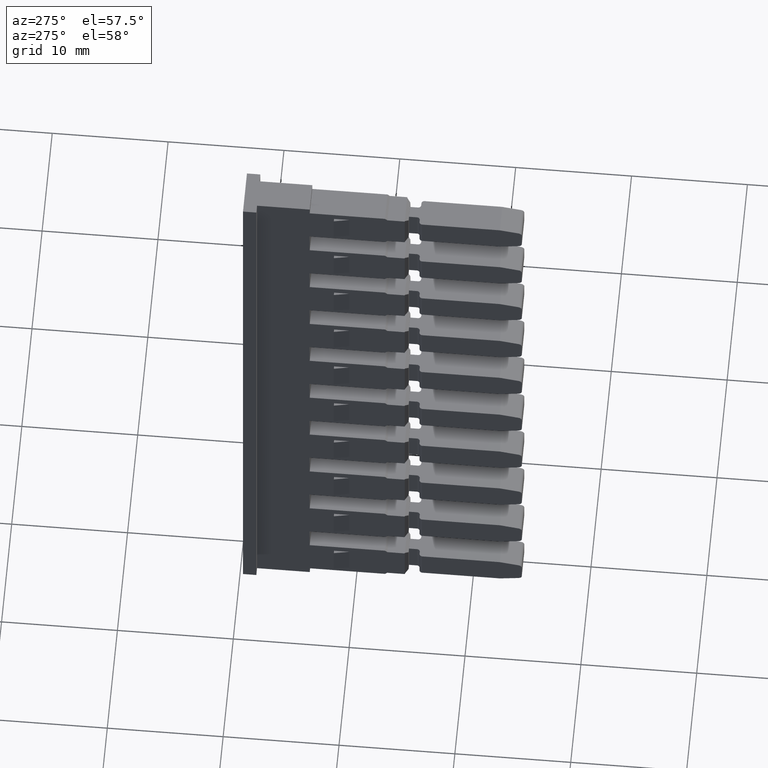
[diagram: clean part render]
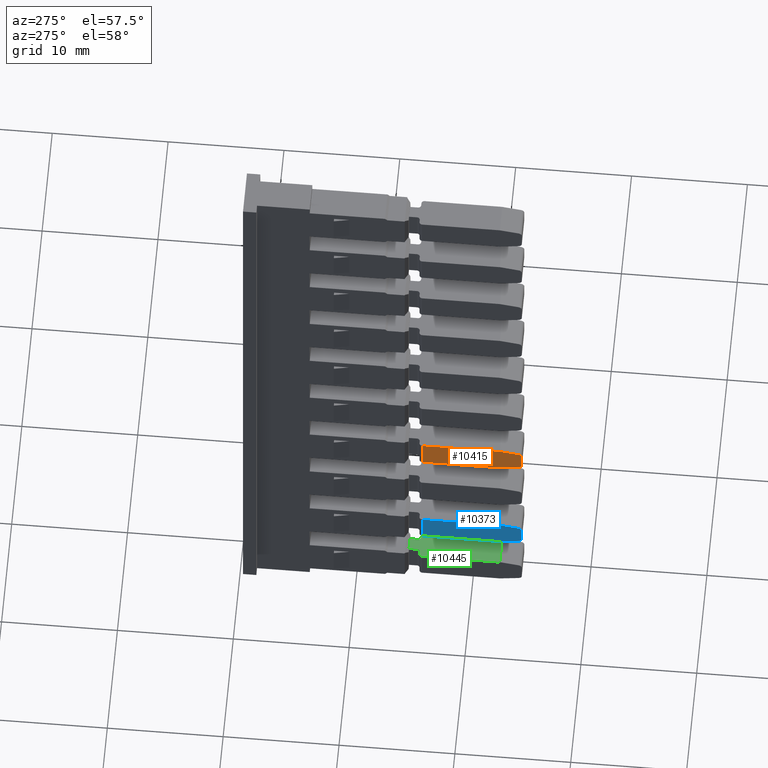
[diagram: same view with three faces highlighted in distinct colors, each labeled with its STEP entity id]
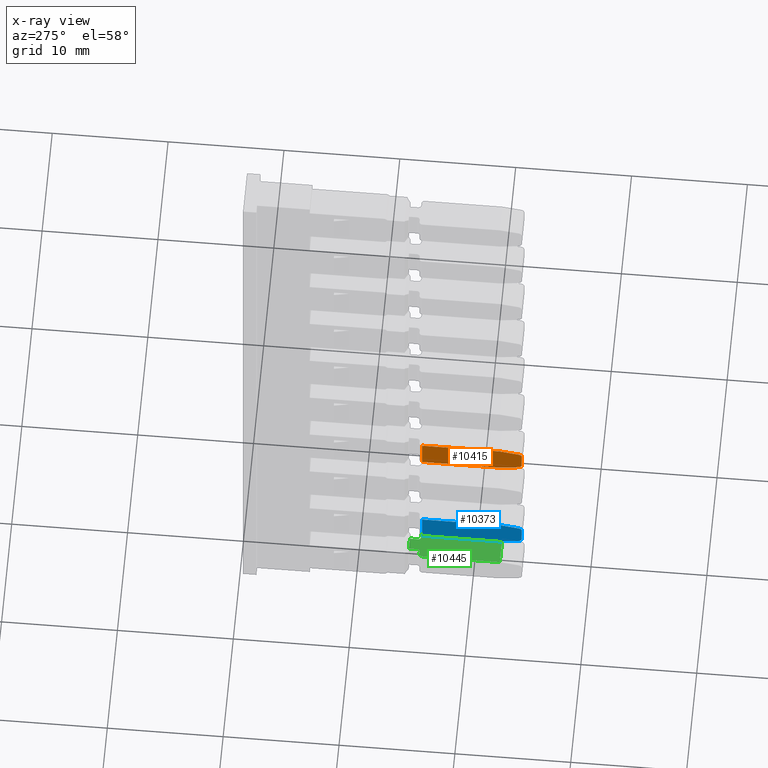
[diagram: x-ray of the same camera — body ghosted, the three highlighted faces saturated]
A machine part, auxiliary view with three faces highlighted in distinct colors.
The next image is the same camera in x-ray (body ghosted, the three faces saturated) — at least one of them is partly hidden behind the body in this view.
Their STEP definitions:

[orange] entity #10415 — the highlighted planar face has unit normal (-1, -0, -0).
#129 = ORIENTED_EDGE ( 'NONE', *, *, #2770, .T. ) ;
#153 = ORIENTED_EDGE ( 'NONE', *, *, #10059, .T. ) ;
#159 = ORIENTED_EDGE ( 'NONE', *, *, #2666, .T. ) ;
#160 = ORIENTED_EDGE ( 'NONE', *, *, #2778, .T. ) ;
#163 = ORIENTED_EDGE ( 'NONE', *, *, #2750, .F. ) ;
#166 = ORIENTED_EDGE ( 'NONE', *, *, #10022, .T. ) ;
#174 = ORIENTED_EDGE ( 'NONE', *, *, #2721, .F. ) ;
#186 = ORIENTED_EDGE ( 'NONE', *, *, #2739, .F. ) ;
#1413 = VECTOR ( 'NONE', #5896, 1000.000000000000000 ) ;
#1430 = CIRCLE ( 'NONE', #1431, 0.3499999999999753300 ) ;
#1431 = AXIS2_PLACEMENT_3D ( 'NONE', #6164, #6196, #6120 ) ;
#1443 = VECTOR ( 'NONE', #5996, 1000.000000000000000 ) ;
#1447 = CIRCLE ( 'NONE', #1457, 0.3499999999999892100 ) ;
#1457 = AXIS2_PLACEMENT_3D ( 'NONE', #6152, #6117, #6204 ) ;
#1490 = VECTOR ( 'NONE', #6283, 1000.000000000000000 ) ;
#1499 = VECTOR ( 'NONE', #6304, 1000.000000000000000 ) ;
#2666 = EDGE_CURVE ( 'NONE', #7634, #7722, #5892, .T. ) ;
#2721 = EDGE_CURVE ( 'NONE', #7715, #7722, #6006, .T. ) ;
#2739 = EDGE_CURVE ( 'NONE', #7641, #7644, #1447, .T. ) ;
#2750 = EDGE_CURVE ( 'NONE', #7674, #7646, #1430, .T. ) ;
#2770 = EDGE_CURVE ( 'NONE', #7641, #7646, #6273, .T. ) ;
#2778 = EDGE_CURVE ( 'NONE', #7715, #7608, #6323, .T. ) ;
#4070 = FACE_OUTER_BOUND ( 'NONE', #8340, .T. ) ;
#4072 = PLANE ( 'NONE',  #13383 ) ;
#4073 = DIRECTION ( 'NONE',  ( -1.000000000000000000, -8.755341356932190700E-015, -5.174141154057529600E-029 ) ) ;
#4080 = DIRECTION ( 'NONE',  ( 8.755341356932190700E-015, -1.000000000000000000, 0.0000000000000000000 ) ) ;
#4088 = CARTESIAN_POINT ( 'NONE',  ( 1456.818237421122100, 988.9878926471552600, -51.22084861506190400 ) ) ;
#5864 = CARTESIAN_POINT ( 'NONE',  ( 1456.818237421122100, 988.9878926471552600, -113.6000000001757500 ) ) ;
#5892 = LINE ( 'NONE', #5864, #1413 ) ;
#5896 = DIRECTION ( 'NONE',  ( -8.755341356932190700E-015, 1.000000000000000000, -0.0000000000000000000 ) ) ;
#5994 = CARTESIAN_POINT ( 'NONE',  ( 1456.818237421122100, 994.2959515111007200, -51.22084861506190400 ) ) ;
#5996 = DIRECTION ( 'NONE',  ( -5.167038929197629600E-029, -3.006023274397918700E-044, 1.000000000000000000 ) ) ;
#6006 = LINE ( 'NONE', #5994, #1443 ) ;
#6117 = DIRECTION ( 'NONE',  ( 1.000000000000000000, 5.817690394031370500E-016, 1.715124499442885300E-015 ) ) ;
#6120 = DIRECTION ( 'NONE',  ( 0.0000000000000000000, 0.0000000000000000000, -1.000000000000000000 ) ) ;
#6152 = CARTESIAN_POINT ( 'NONE',  ( 1456.818237421122100, 986.0446795375041800, -115.5719204243701500 ) ) ;
#6164 = CARTESIAN_POINT ( 'NONE',  ( 1456.818237421122100, 986.0446795375041800, -114.2287961273911200 ) ) ;
#6196 = DIRECTION ( 'NONE',  ( 1.000000000000000000, 5.817690394031370500E-016, 1.715124499442885300E-015 ) ) ;
#6204 = DIRECTION ( 'NONE',  ( 0.0000000000000000000, 0.0000000000000000000, -1.000000000000000000 ) ) ;
#6273 = LINE ( 'NONE', #6309, #1499 ) ;
#6283 = DIRECTION ( 'NONE',  ( 8.755341356932190700E-015, -1.000000000000000000, 0.0000000000000000000 ) ) ;
#6304 = DIRECTION ( 'NONE',  ( 0.0000000000000000000, 0.0000000000000000000, 1.000000000000000000 ) ) ;
#6307 = CARTESIAN_POINT ( 'NONE',  ( 1456.818237421122100, 988.9878926471552600, -116.1999999999900800 ) ) ;
#6309 = CARTESIAN_POINT ( 'NONE',  ( 1456.818237421122100, 985.6946795375042700, -115.5719204243701800 ) ) ;
#6323 = LINE ( 'NONE', #6307, #1490 ) ;
#7608 = VERTEX_POINT ( 'NONE', #9150 ) ;
#7634 = VERTEX_POINT ( 'NONE', #9142 ) ;
#7641 = VERTEX_POINT ( 'NONE', #9132 ) ;
#7644 = VERTEX_POINT ( 'NONE', #9148 ) ;
#7646 = VERTEX_POINT ( 'NONE', #9105 ) ;
#7674 = VERTEX_POINT ( 'NONE', #9177 ) ;
#7715 = VERTEX_POINT ( 'NONE', #9171 ) ;
#7722 = VERTEX_POINT ( 'NONE', #9261 ) ;
#8340 = EDGE_LOOP ( 'NONE', ( #160, #153, #186, #129, #163, #166, #159, #174 ) ) ;
#9105 = CARTESIAN_POINT ( 'NONE',  ( 1456.818237421122100, 985.6946795375042700, -114.2287961273911200 ) ) ;
#9132 = CARTESIAN_POINT ( 'NONE',  ( 1456.818237421122100, 985.6946795375042700, -115.5719204243701500 ) ) ;
#9142 = CARTESIAN_POINT ( 'NONE',  ( 1456.818237421122100, 987.5951899123997500, -113.6000000001434800 ) ) ;
#9148 = CARTESIAN_POINT ( 'NONE',  ( 1456.818237421122100, 985.9839026753207900, -115.9166031379244500 ) ) ;
#9150 = CARTESIAN_POINT ( 'NONE',  ( 1456.818237421122100, 987.5911261468929800, -116.1999999999886200 ) ) ;
#9171 = CARTESIAN_POINT ( 'NONE',  ( 1456.818237421122100, 994.2959515111007200, -116.1999999999891500 ) ) ;
#9177 = CARTESIAN_POINT ( 'NONE',  ( 1456.818237421122100, 985.9839026753209100, -113.8841134138368300 ) ) ;
#9261 = CARTESIAN_POINT ( 'NONE',  ( 1456.818237421122100, 994.2959515111007200, -113.6000000002227200 ) ) ;
#9439 = LINE ( 'NONE', #9442, #12954 ) ;
#9442 = CARTESIAN_POINT ( 'NONE',  ( 1456.818237421122100, 987.5951899123942900, -113.6000000002697000 ) ) ;
#9492 = DIRECTION ( 'NONE',  ( 0.0000000000000000000, 0.9848077530122177900, 0.1736481776668759300 ) ) ;
#9592 = LINE ( 'NONE', #9616, #13019 ) ;
#9606 = DIRECTION ( 'NONE',  ( 0.0000000000000000000, -0.9848077530122103500, 0.1736481776669172600 ) ) ;
#9616 = CARTESIAN_POINT ( 'NONE',  ( 1456.818237421122100, 987.5911261468902500, -116.1999999999900600 ) ) ;
#10022 = EDGE_CURVE ( 'NONE', #7674, #7634, #9439, .T. ) ;
#10059 = EDGE_CURVE ( 'NONE', #7608, #7644, #9592, .T. ) ;
#10415 = ADVANCED_FACE ( 'NONE', ( #4070 ), #4072, .T. ) ;
#12954 = VECTOR ( 'NONE', #9492, 999.9999999999998900 ) ;
#13019 = VECTOR ( 'NONE', #9606, 1000.000000000000100 ) ;
#13383 = AXIS2_PLACEMENT_3D ( 'NONE', #4088, #4073, #4080 ) ;

[blue] entity #10373 — the highlighted planar face has unit normal (-1, -0, -0).
#484 = ORIENTED_EDGE ( 'NONE', *, *, #10176, .T. ) ;
#485 = ORIENTED_EDGE ( 'NONE', *, *, #10113, .T. ) ;
#519 = ORIENTED_EDGE ( 'NONE', *, *, #10131, .F. ) ;
#551 = ORIENTED_EDGE ( 'NONE', *, *, #10127, .F. ) ;
#552 = ORIENTED_EDGE ( 'NONE', *, *, #10110, .F. ) ;
#560 = ORIENTED_EDGE ( 'NONE', *, *, #10167, .T. ) ;
#570 = ORIENTED_EDGE ( 'NONE', *, *, #10092, .T. ) ;
#576 = ORIENTED_EDGE ( 'NONE', *, *, #10185, .T. ) ;
#7726 = VERTEX_POINT ( 'NONE', #9223 ) ;
#7734 = VERTEX_POINT ( 'NONE', #9280 ) ;
#7735 = VERTEX_POINT ( 'NONE', #9258 ) ;
#7757 = VERTEX_POINT ( 'NONE', #9247 ) ;
#7762 = VERTEX_POINT ( 'NONE', #9250 ) ;
#7770 = VERTEX_POINT ( 'NONE', #9269 ) ;
#7782 = VERTEX_POINT ( 'NONE', #9298 ) ;
#7786 = VERTEX_POINT ( 'NONE', #9336 ) ;
#7856 = EDGE_LOOP ( 'NONE', ( #484, #485, #551, #576, #519, #560, #570, #552 ) ) ;
#9223 = CARTESIAN_POINT ( 'NONE',  ( 1456.818237421122100, 985.6946795374904000, -127.3719204243701500 ) ) ;
#9247 = CARTESIAN_POINT ( 'NONE',  ( 1456.818237421122100, 994.2959515110868600, -127.9999999999891300 ) ) ;
#9250 = CARTESIAN_POINT ( 'NONE',  ( 1456.818237421122100, 987.5911261468791100, -127.9999999999886200 ) ) ;
#9258 = CARTESIAN_POINT ( 'NONE',  ( 1456.818237421122100, 985.9839026753069200, -127.7166031379244700 ) ) ;
#9269 = CARTESIAN_POINT ( 'NONE',  ( 1456.818237421122100, 987.5951899123857600, -125.4000000001434500 ) ) ;
#9280 = CARTESIAN_POINT ( 'NONE',  ( 1456.818237421122100, 994.2959515110868600, -125.4000000002227200 ) ) ;
#9298 = CARTESIAN_POINT ( 'NONE',  ( 1456.818237421122100, 985.9839026753070400, -125.6841134138368400 ) ) ;
#9336 = CARTESIAN_POINT ( 'NONE',  ( 1456.818237421122100, 985.6946795374904000, -126.0287961273910900 ) ) ;
#9678 = DIRECTION ( 'NONE',  ( -8.755341356932190700E-015, 1.000000000000000000, -0.0000000000000000000 ) ) ;
#9680 = CARTESIAN_POINT ( 'NONE',  ( 1456.818237421122100, 988.9878926471413900, -125.4000000001757700 ) ) ;
#9692 = LINE ( 'NONE', #9680, #13059 ) ;
#10092 = EDGE_CURVE ( 'NONE', #7770, #7734, #9692, .T. ) ;
#10110 = EDGE_CURVE ( 'NONE', #7757, #7734, #10832, .T. ) ;
#10113 = EDGE_CURVE ( 'NONE', #7762, #7735, #10870, .T. ) ;
#10127 = EDGE_CURVE ( 'NONE', #7726, #7735, #13061, .T. ) ;
#10131 = EDGE_CURVE ( 'NONE', #7782, #7786, #13096, .T. ) ;
#10167 = EDGE_CURVE ( 'NONE', #7782, #7770, #11025, .T. ) ;
#10176 = EDGE_CURVE ( 'NONE', #7757, #7762, #11043, .T. ) ;
#10185 = EDGE_CURVE ( 'NONE', #7726, #7786, #11075, .T. ) ;
#10373 = ADVANCED_FACE ( 'NONE', ( #11716 ), #11685, .T. ) ;
#10819 = DIRECTION ( 'NONE',  ( -5.167038929197629600E-029, -3.006023274397918700E-044, 1.000000000000000000 ) ) ;
#10832 = LINE ( 'NONE', #10836, #13053 ) ;
#10836 = CARTESIAN_POINT ( 'NONE',  ( 1456.818237421122100, 994.2959515110868600, -63.02084861506190800 ) ) ;
#10870 = LINE ( 'NONE', #10898, #13052 ) ;
#10880 = DIRECTION ( 'NONE',  ( 0.0000000000000000000, -0.9848077530122103500, 0.1736481776669172600 ) ) ;
#10898 = CARTESIAN_POINT ( 'NONE',  ( 1456.818237421122100, 987.5911261468763800, -127.9999999999900700 ) ) ;
#10905 = DIRECTION ( 'NONE',  ( 1.000000000000000000, 5.817690394031370500E-016, 1.715124499442885300E-015 ) ) ;
#10906 = DIRECTION ( 'NONE',  ( 1.000000000000000000, 5.817690394031370500E-016, 1.715124499442885300E-015 ) ) ;
#10917 = CARTESIAN_POINT ( 'NONE',  ( 1456.818237421122100, 986.0446795374903100, -127.3719204243701500 ) ) ;
#10936 = CARTESIAN_POINT ( 'NONE',  ( 1456.818237421122100, 986.0446795374903100, -126.0287961273910900 ) ) ;
#10942 = DIRECTION ( 'NONE',  ( 0.0000000000000000000, 0.0000000000000000000, -1.000000000000000000 ) ) ;
#10945 = DIRECTION ( 'NONE',  ( 0.0000000000000000000, 0.0000000000000000000, -1.000000000000000000 ) ) ;
#11001 = DIRECTION ( 'NONE',  ( 0.0000000000000000000, 0.9848077530122177900, 0.1736481776668759300 ) ) ;
#11025 = LINE ( 'NONE', #11029, #13151 ) ;
#11029 = CARTESIAN_POINT ( 'NONE',  ( 1456.818237421122100, 987.5951899123804200, -125.4000000002696900 ) ) ;
#11043 = LINE ( 'NONE', #11051, #13153 ) ;
#11051 = CARTESIAN_POINT ( 'NONE',  ( 1456.818237421122100, 988.9878926471413900, -127.9999999999901000 ) ) ;
#11064 = CARTESIAN_POINT ( 'NONE',  ( 1456.818237421122100, 985.6946795374904000, -127.3719204243701700 ) ) ;
#11075 = LINE ( 'NONE', #11064, #13103 ) ;
#11076 = DIRECTION ( 'NONE',  ( 0.0000000000000000000, 0.0000000000000000000, 1.000000000000000000 ) ) ;
#11078 = DIRECTION ( 'NONE',  ( 8.755341356932190700E-015, -1.000000000000000000, 0.0000000000000000000 ) ) ;
#11666 = DIRECTION ( 'NONE',  ( 8.755341356932190700E-015, -1.000000000000000000, 0.0000000000000000000 ) ) ;
#11685 = PLANE ( 'NONE',  #13349 ) ;
#11697 = DIRECTION ( 'NONE',  ( -1.000000000000000000, -8.755341356932190700E-015, -5.174141154057529600E-029 ) ) ;
#11709 = CARTESIAN_POINT ( 'NONE',  ( 1456.818237421122100, 988.9878926471413900, -63.02084861506190800 ) ) ;
#11716 = FACE_OUTER_BOUND ( 'NONE', #7856, .T. ) ;
#13052 = VECTOR ( 'NONE', #10880, 1000.000000000000100 ) ;
#13053 = VECTOR ( 'NONE', #10819, 1000.000000000000000 ) ;
#13059 = VECTOR ( 'NONE', #9678, 1000.000000000000000 ) ;
#13061 = CIRCLE ( 'NONE', #13075, 0.3499999999999892100 ) ;
#13075 = AXIS2_PLACEMENT_3D ( 'NONE', #10917, #10905, #10945 ) ;
#13088 = AXIS2_PLACEMENT_3D ( 'NONE', #10936, #10906, #10942 ) ;
#13096 = CIRCLE ( 'NONE', #13088, 0.3499999999999614500 ) ;
#13103 = VECTOR ( 'NONE', #11076, 1000.000000000000000 ) ;
#13151 = VECTOR ( 'NONE', #11001, 999.9999999999998900 ) ;
#13153 = VECTOR ( 'NONE', #11078, 1000.000000000000000 ) ;
#13349 = AXIS2_PLACEMENT_3D ( 'NONE', #11709, #11697, #11666 ) ;

[green] entity #10445 — the highlighted planar face has unit normal (-0, 0, 1).
#620 = ORIENTED_EDGE ( 'NONE', *, *, #10161, .T. ) ;
#622 = ORIENTED_EDGE ( 'NONE', *, *, #10162, .T. ) ;
#624 = ORIENTED_EDGE ( 'NONE', *, *, #10171, .F. ) ;
#630 = ORIENTED_EDGE ( 'NONE', *, *, #10234, .T. ) ;
#636 = ORIENTED_EDGE ( 'NONE', *, *, #10147, .F. ) ;
#663 = ORIENTED_EDGE ( 'NONE', *, *, #10136, .T. ) ;
#669 = ORIENTED_EDGE ( 'NONE', *, *, #10213, .T. ) ;
#671 = ORIENTED_EDGE ( 'NONE', *, *, #10189, .T. ) ;
#681 = ORIENTED_EDGE ( 'NONE', *, *, #10175, .T. ) ;
#695 = ORIENTED_EDGE ( 'NONE', *, *, #10137, .T. ) ;
#721 = ORIENTED_EDGE ( 'NONE', *, *, #10225, .T. ) ;
#737 = ORIENTED_EDGE ( 'NONE', *, *, #10155, .T. ) ;
#3248 = DIRECTION ( 'NONE',  ( 1.000000000000000000, 0.0000000000000000000, 1.715124499442840100E-015 ) ) ;
#3249 = CARTESIAN_POINT ( 'NONE',  ( 1458.020071211366000, 1004.604679537464600, -131.2999999999878200 ) ) ;
#3255 = PLANE ( 'NONE',  #13437 ) ;
#3262 = FACE_OUTER_BOUND ( 'NONE', #7926, .T. ) ;
#3287 = DIRECTION ( 'NONE',  ( -1.715124499442840100E-015, 0.0000000000000000000, 1.000000000000000000 ) ) ;
#7739 = VERTEX_POINT ( 'NONE', #9275 ) ;
#7741 = VERTEX_POINT ( 'NONE', #9252 ) ;
#7742 = VERTEX_POINT ( 'NONE', #9239 ) ;
#7789 = VERTEX_POINT ( 'NONE', #9321 ) ;
#7814 = VERTEX_POINT ( 'NONE', #9307 ) ;
#7831 = VERTEX_POINT ( 'NONE', #9283 ) ;
#7841 = VERTEX_POINT ( 'NONE', #9372 ) ;
#7843 = VERTEX_POINT ( 'NONE', #9360 ) ;
#7845 = VERTEX_POINT ( 'NONE', #9356 ) ;
#7846 = VERTEX_POINT ( 'NONE', #9371 ) ;
#7853 = VERTEX_POINT ( 'NONE', #9369 ) ;
#7880 = VERTEX_POINT ( 'NONE', #9357 ) ;
#7926 = EDGE_LOOP ( 'NONE', ( #630, #624, #681, #636, #721, #669, #620, #622, #663, #737, #671, #695 ) ) ;
#9239 = CARTESIAN_POINT ( 'NONE',  ( 1458.967905001598000, 994.5459515110800300, -131.3000000000275000 ) ) ;
#9252 = CARTESIAN_POINT ( 'NONE',  ( 1457.516071211365900, 994.7959515110798100, -131.2999999999878200 ) ) ;
#9275 = CARTESIAN_POINT ( 'NONE',  ( 1458.770071211365800, 994.5459515110799200, -131.3000000000275000 ) ) ;
#9283 = CARTESIAN_POINT ( 'NONE',  ( 1457.068237421122100, 994.5459515110799200, -131.2999999999878200 ) ) ;
#9307 = CARTESIAN_POINT ( 'NONE',  ( 1457.266071211365900, 994.5459515110798100, -131.2999999999878200 ) ) ;
#9321 = CARTESIAN_POINT ( 'NONE',  ( 1457.516071211365900, 995.4926795374634600, -131.2999999999878200 ) ) ;
#9356 = CARTESIAN_POINT ( 'NONE',  ( 1458.520071211365800, 994.7959515110798100, -131.3000000000275000 ) ) ;
#9357 = CARTESIAN_POINT ( 'NONE',  ( 1456.818237421122100, 987.5951899123788300, -131.3000000001434600 ) ) ;
#9360 = CARTESIAN_POINT ( 'NONE',  ( 1456.818237421122100, 994.2959515110798100, -131.3000000002227500 ) ) ;
#9369 = CARTESIAN_POINT ( 'NONE',  ( 1459.217905001598200, 987.5951899123174400, -131.3000000001542800 ) ) ;
#9371 = CARTESIAN_POINT ( 'NONE',  ( 1458.520071211365800, 995.4926795374634600, -131.3000000000010900 ) ) ;
#9372 = CARTESIAN_POINT ( 'NONE',  ( 1459.217905001598200, 994.2959515110798100, -131.3000000001376900 ) ) ;
#10136 = EDGE_CURVE ( 'NONE', #7846, #7789, #10943, .T. ) ;
#10137 = EDGE_CURVE ( 'NONE', #7814, #7831, #10910, .T. ) ;
#10147 = EDGE_CURVE ( 'NONE', #7841, #7853, #10927, .T. ) ;
#10155 = EDGE_CURVE ( 'NONE', #7789, #7741, #10990, .T. ) ;
#10161 = EDGE_CURVE ( 'NONE', #7739, #7845, #13140, .T. ) ;
#10162 = EDGE_CURVE ( 'NONE', #7845, #7846, #11023, .T. ) ;
#10171 = EDGE_CURVE ( 'NONE', #7880, #7843, #11002, .T. ) ;
#10175 = EDGE_CURVE ( 'NONE', #7880, #7853, #11073, .T. ) ;
#10189 = EDGE_CURVE ( 'NONE', #7741, #7814, #13136, .T. ) ;
#10213 = EDGE_CURVE ( 'NONE', #7742, #7739, #11138, .T. ) ;
#10225 = EDGE_CURVE ( 'NONE', #7841, #7742, #13191, .T. ) ;
#10234 = EDGE_CURVE ( 'NONE', #7831, #7843, #13194, .T. ) ;
#10445 = ADVANCED_FACE ( 'NONE', ( #3262 ), #3255, .T. ) ;
#10904 = DIRECTION ( 'NONE',  ( -1.000000000000000000, -0.0000000000000000000, -1.715124499442840100E-015 ) ) ;
#10910 = LINE ( 'NONE', #10930, #13040 ) ;
#10915 = DIRECTION ( 'NONE',  ( -1.000000000000000000, -0.0000000000000000000, -1.715124499442840100E-015 ) ) ;
#10927 = LINE ( 'NONE', #10992, #13113 ) ;
#10930 = CARTESIAN_POINT ( 'NONE',  ( 1458.020071211366000, 994.5459515110799200, -131.2999999999878200 ) ) ;
#10939 = CARTESIAN_POINT ( 'NONE',  ( 1458.020071211366000, 995.4926795374634600, -131.2999999999878200 ) ) ;
#10943 = LINE ( 'NONE', #10939, #13079 ) ;
#10961 = DIRECTION ( 'NONE',  ( -0.0000000000000000000, -1.000000000000000000, -0.0000000000000000000 ) ) ;
#10982 = CARTESIAN_POINT ( 'NONE',  ( 1457.516071211365900, 1004.604679537464600, -131.2999999999878200 ) ) ;
#10987 = DIRECTION ( 'NONE',  ( -0.0000000000000000000, -1.000000000000000000, 0.0000000000000000000 ) ) ;
#10990 = LINE ( 'NONE', #10982, #13128 ) ;
#10992 = CARTESIAN_POINT ( 'NONE',  ( 1459.217905001598200, 988.9878926471144500, -131.3000000002082000 ) ) ;
#10994 = DIRECTION ( 'NONE',  ( -1.000000000000000000, 0.0000000000000000000, 0.0000000000000000000 ) ) ;
#10997 = CARTESIAN_POINT ( 'NONE',  ( 1456.818237421122100, 988.9878926471343400, -131.3000000001757400 ) ) ;
#11002 = LINE ( 'NONE', #10997, #13098 ) ;
#11008 = CARTESIAN_POINT ( 'NONE',  ( 1458.520071211365800, 1004.604679537464600, -131.2999999999878200 ) ) ;
#11012 = DIRECTION ( 'NONE',  ( -8.755341356932190700E-015, 1.000000000000000000, -0.0000000000000000000 ) ) ;
#11014 = CARTESIAN_POINT ( 'NONE',  ( 1458.770071211365800, 994.7959515110798100, -131.3000000000672300 ) ) ;
#11015 = DIRECTION ( 'NONE',  ( 0.0000000000000000000, 1.000000000000000000, -0.0000000000000000000 ) ) ;
#11021 = DIRECTION ( 'NONE',  ( 1.715124499442840100E-015, 9.978063324976473400E-031, -1.000000000000000000 ) ) ;
#11023 = LINE ( 'NONE', #11008, #13099 ) ;
#11050 = DIRECTION ( 'NONE',  ( 1.000000000000000000, 0.0000000000000000000, 1.715124499442840100E-015 ) ) ;
#11052 = CARTESIAN_POINT ( 'NONE',  ( 1458.020071211366000, 987.5951899123733700, -131.2999999999878200 ) ) ;
#11073 = LINE ( 'NONE', #11052, #13119 ) ;
#11099 = CARTESIAN_POINT ( 'NONE',  ( 1457.266071211365900, 994.7959515110798100, -131.2999999999878200 ) ) ;
#11119 = DIRECTION ( 'NONE',  ( 1.000000000000000000, 0.0000000000000000000, 0.0000000000000000000 ) ) ;
#11129 = DIRECTION ( 'NONE',  ( 1.715124499442885100E-015, 9.978063324976734400E-031, -1.000000000000000000 ) ) ;
#11138 = LINE ( 'NONE', #11147, #13184 ) ;
#11147 = CARTESIAN_POINT ( 'NONE',  ( 1458.020071211366000, 994.5459515110800300, -131.2999999999878200 ) ) ;
#11177 = DIRECTION ( 'NONE',  ( -1.000000000000000000, -0.0000000000000000000, -1.715124499442840100E-015 ) ) ;
#11211 = CARTESIAN_POINT ( 'NONE',  ( 1458.967905001598000, 994.2959515110798100, -131.3000000000672300 ) ) ;
#11214 = DIRECTION ( 'NONE',  ( 1.000000000000000000, 0.0000000000000000000, 0.0000000000000000000 ) ) ;
#11221 = DIRECTION ( 'NONE',  ( 0.0000000000000000000, 0.0000000000000000000, 1.000000000000000000 ) ) ;
#11230 = DIRECTION ( 'NONE',  ( 1.000000000000000000, 0.0000000000000000000, 0.0000000000000000000 ) ) ;
#11239 = DIRECTION ( 'NONE',  ( -5.167038929197629600E-029, -3.006023274397918700E-044, 1.000000000000000000 ) ) ;
#11246 = CARTESIAN_POINT ( 'NONE',  ( 1457.068237421122100, 994.2959515110798100, -131.3000000002697000 ) ) ;
#13040 = VECTOR ( 'NONE', #10904, 1000.000000000000000 ) ;
#13079 = VECTOR ( 'NONE', #10915, 1000.000000000000000 ) ;
#13098 = VECTOR ( 'NONE', #11012, 1000.000000000000000 ) ;
#13099 = VECTOR ( 'NONE', #11015, 1000.000000000000000 ) ;
#13108 = AXIS2_PLACEMENT_3D ( 'NONE', #11014, #11021, #10994 ) ;
#13113 = VECTOR ( 'NONE', #10961, 1000.000000000000000 ) ;
#13119 = VECTOR ( 'NONE', #11050, 1000.000000000000000 ) ;
#13125 = AXIS2_PLACEMENT_3D ( 'NONE', #11099, #11129, #11119 ) ;
#13128 = VECTOR ( 'NONE', #10987, 1000.000000000000000 ) ;
#13136 = CIRCLE ( 'NONE', #13125, 0.2500000000000834900 ) ;
#13140 = CIRCLE ( 'NONE', #13108, 0.2500000000000834900 ) ;
#13179 = AXIS2_PLACEMENT_3D ( 'NONE', #11246, #11239, #11230 ) ;
#13184 = VECTOR ( 'NONE', #11177, 1000.000000000000000 ) ;
#13191 = CIRCLE ( 'NONE', #13213, 0.2500000000000834900 ) ;
#13194 = CIRCLE ( 'NONE', #13179, 0.2500000000000834900 ) ;
#13213 = AXIS2_PLACEMENT_3D ( 'NONE', #11211, #11221, #11214 ) ;
#13437 = AXIS2_PLACEMENT_3D ( 'NONE', #3249, #3287, #3248 ) ;